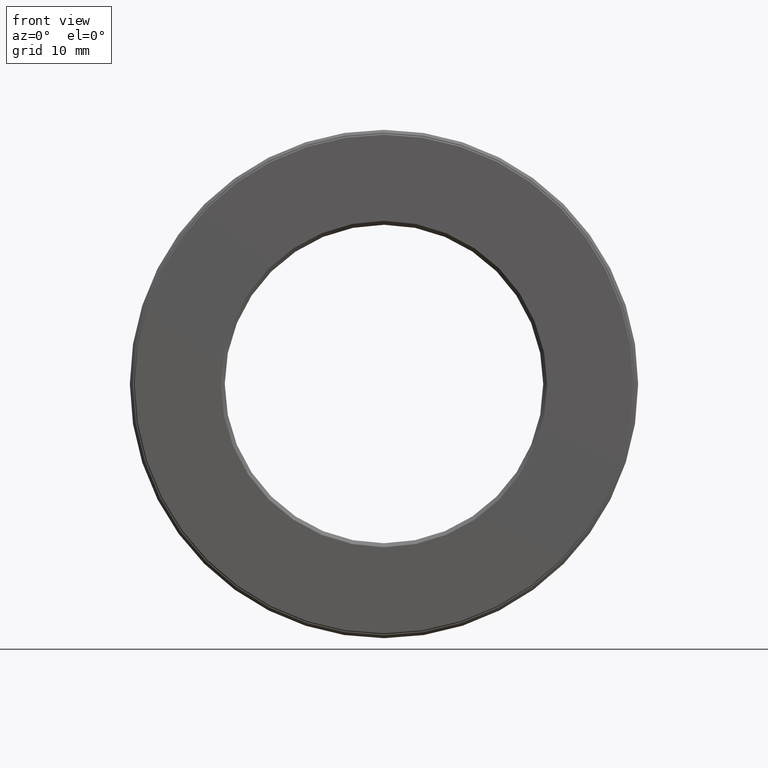
[diagram: clean part render]
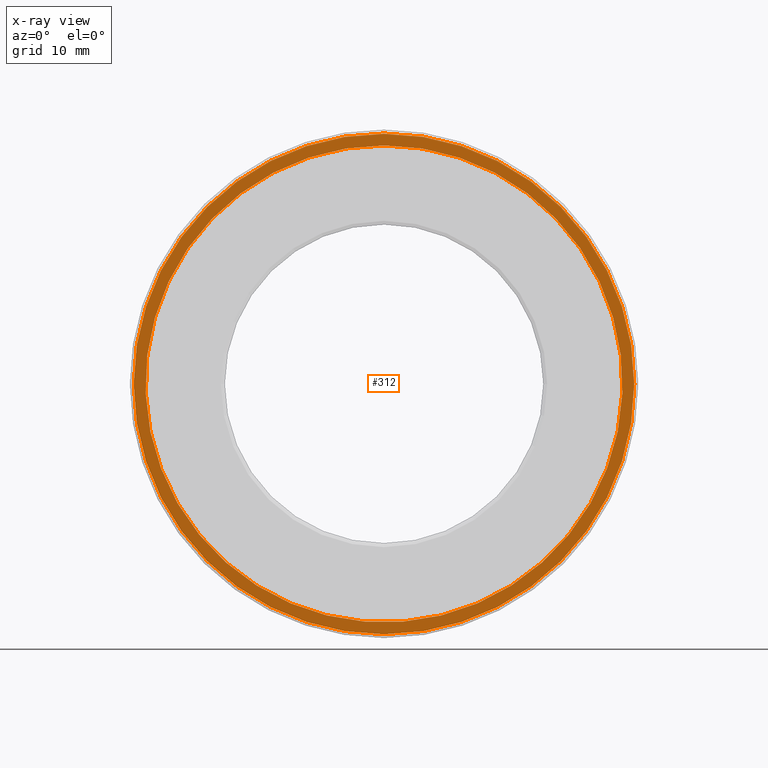
[diagram: x-ray — body ghosted, one internal face saturated and labeled with its STEP entity id]
A machine part, front view, then the same camera in x-ray: the body is ghosted and one INTERNAL B-rep face — a face not visible from any outside direction — is saturated and labeled: STEP entity #312.
In plain terms, the highlighted planar face has unit normal (-0, 1, 0).
Its self-contained STEP definition (entity closure, byte-faithful):
#17 = CARTESIAN_POINT ( 'NONE',  ( 0.0000000000000000000, 0.6524999999999997500, 1.276875000000000000 ) ) ;
#37 = ORIENTED_EDGE ( 'NONE', *, *, #191, .F. ) ;
#105 = ORIENTED_EDGE ( 'NONE', *, *, #371, .T. ) ;
#112 = VERTEX_POINT ( 'NONE', #17 ) ;
#127 = DIRECTION ( 'NONE',  ( -0.0000000000000000000, 1.000000000000000000, -0.0000000000000000000 ) ) ;
#178 = EDGE_LOOP ( 'NONE', ( #105 ) ) ;
#180 = CARTESIAN_POINT ( 'NONE',  ( 0.0000000000000000000, 0.6524999999999997500, 0.0000000000000000000 ) ) ;
#191 = EDGE_CURVE ( 'NONE', #112, #112, #280, .T. ) ;
#215 = FACE_OUTER_BOUND ( 'NONE', #498, .T. ) ;
#235 = DIRECTION ( 'NONE',  ( 0.0000000000000000000, 0.0000000000000000000, 1.000000000000000000 ) ) ;
#238 = CARTESIAN_POINT ( 'NONE',  ( 0.0000000000000000000, 0.6524999999999997500, 0.0000000000000000000 ) ) ;
#280 = CIRCLE ( 'NONE', #434, 1.276875000000000000 ) ;
#285 = DIRECTION ( 'NONE',  ( -0.0000000000000000000, 1.000000000000000000, 0.0000000000000000000 ) ) ;
#304 = AXIS2_PLACEMENT_3D ( 'NONE', #419, #285, #467 ) ;
#309 = VERTEX_POINT ( 'NONE', #491 ) ;
#312 = ADVANCED_FACE ( 'NONE', ( #215, #343 ), #423, .F. ) ;
#343 = FACE_BOUND ( 'NONE', #178, .T. ) ;
#371 = EDGE_CURVE ( 'NONE', #309, #309, #463, .T. ) ;
#419 = CARTESIAN_POINT ( 'NONE',  ( 0.0000000000000000000, 0.6524999999999997500, 0.0000000000000000000 ) ) ;
#421 = AXIS2_PLACEMENT_3D ( 'NONE', #238, #522, #235 ) ;
#423 = PLANE ( 'NONE',  #304 ) ;
#434 = AXIS2_PLACEMENT_3D ( 'NONE', #180, #127, #591 ) ;
#463 = CIRCLE ( 'NONE', #421, 1.216875000000000200 ) ;
#467 = DIRECTION ( 'NONE',  ( 0.0000000000000000000, 0.0000000000000000000, 1.000000000000000000 ) ) ;
#491 = CARTESIAN_POINT ( 'NONE',  ( 0.0000000000000000000, 0.6524999999999997500, 1.216875000000000200 ) ) ;
#498 = EDGE_LOOP ( 'NONE', ( #37 ) ) ;
#522 = DIRECTION ( 'NONE',  ( -0.0000000000000000000, 1.000000000000000000, -0.0000000000000000000 ) ) ;
#591 = DIRECTION ( 'NONE',  ( 0.0000000000000000000, 0.0000000000000000000, 1.000000000000000000 ) ) ;